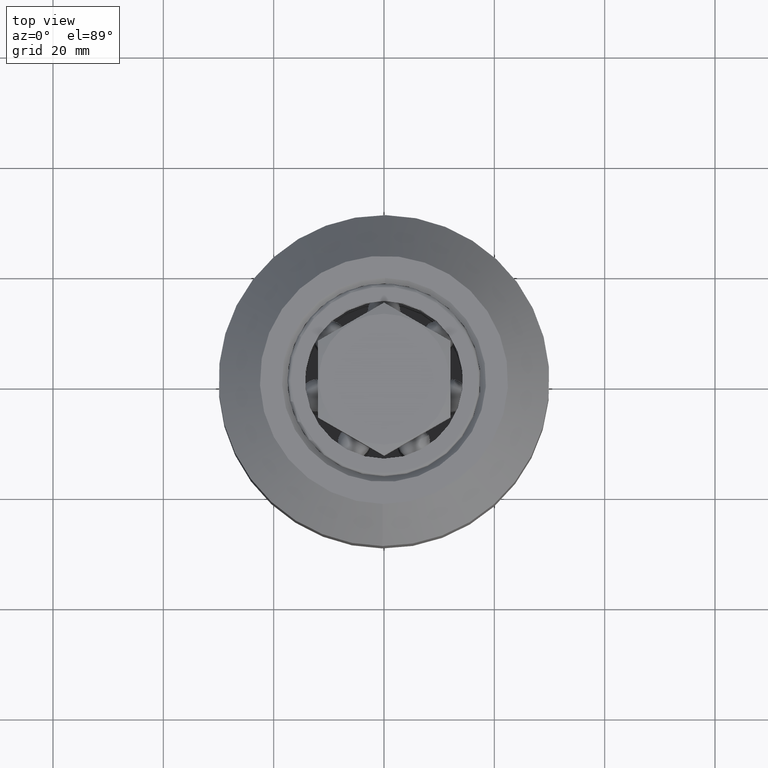
[diagram: clean part render]
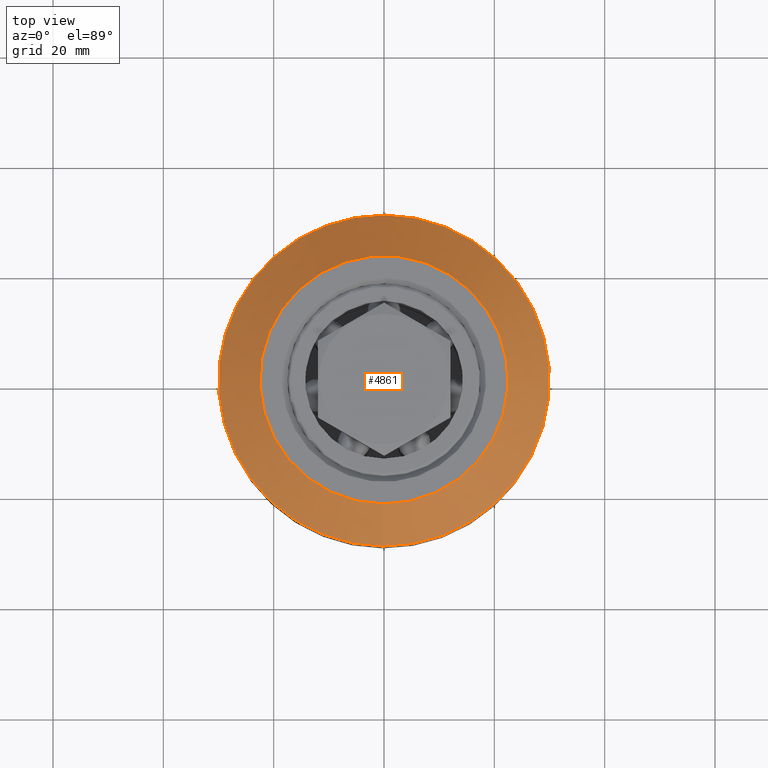
[diagram: same view with one face highlighted and labeled with its STEP entity id]
A machine part, top view. The second image highlights one B-rep face of the part: STEP entity #4861.
In plain terms, the highlighted conical surface has half-angle 45 deg.
Its self-contained STEP definition (entity closure, byte-faithful):
#473=FACE_OUTER_BOUND('',#750,.T.);
#750=EDGE_LOOP('',(#3397,#3398,#3399,#3400));
#1041=CIRCLE('',#5372,22.5);
#1044=CIRCLE('',#5378,30.);
#1314=LINE('',#7443,#1604);
#1604=VECTOR('',#6032,26.25);
#2032=VERTEX_POINT('',#7428);
#2035=VERTEX_POINT('',#7439);
#2568=EDGE_CURVE('',#2032,#2032,#1041,.T.);
#2573=EDGE_CURVE('',#2035,#2035,#1044,.T.);
#2575=EDGE_CURVE('',#2032,#2035,#1314,.T.);
#3397=ORIENTED_EDGE('',*,*,#2568,.F.);
#3398=ORIENTED_EDGE('',*,*,#2575,.T.);
#3399=ORIENTED_EDGE('',*,*,#2573,.T.);
#3400=ORIENTED_EDGE('',*,*,#2575,.F.);
#4822=CONICAL_SURFACE('',#5379,26.25,0.785398163397448);
#4861=ADVANCED_FACE('',(#473),#4822,.T.);
#5372=AXIS2_PLACEMENT_3D('',#7429,#6013,#6014);
#5378=AXIS2_PLACEMENT_3D('',#7440,#6027,#6028);
#5379=AXIS2_PLACEMENT_3D('',#7442,#6030,#6031);
#6013=DIRECTION('center_axis',(1.,0.,0.));
#6014=DIRECTION('ref_axis',(0.,1.,0.));
#6027=DIRECTION('center_axis',(1.,0.,0.));
#6028=DIRECTION('ref_axis',(0.,1.,0.));
#6030=DIRECTION('center_axis',(-1.,0.,0.));
#6031=DIRECTION('ref_axis',(0.,1.,0.));
#6032=DIRECTION('',(-0.707106781186548,-0.707106781186548,-8.65956056235493E-17));
#7428=CARTESIAN_POINT('',(20.,-22.5,-2.75545529808154E-15));
#7429=CARTESIAN_POINT('Origin',(20.,0.,0.));
#7439=CARTESIAN_POINT('',(12.5,-30.,-3.67394039744206E-15));
#7440=CARTESIAN_POINT('Origin',(12.5,0.,0.));
#7442=CARTESIAN_POINT('Origin',(16.25,0.,0.));
#7443=CARTESIAN_POINT('',(16.25,-26.25,-3.2146978477618E-15));